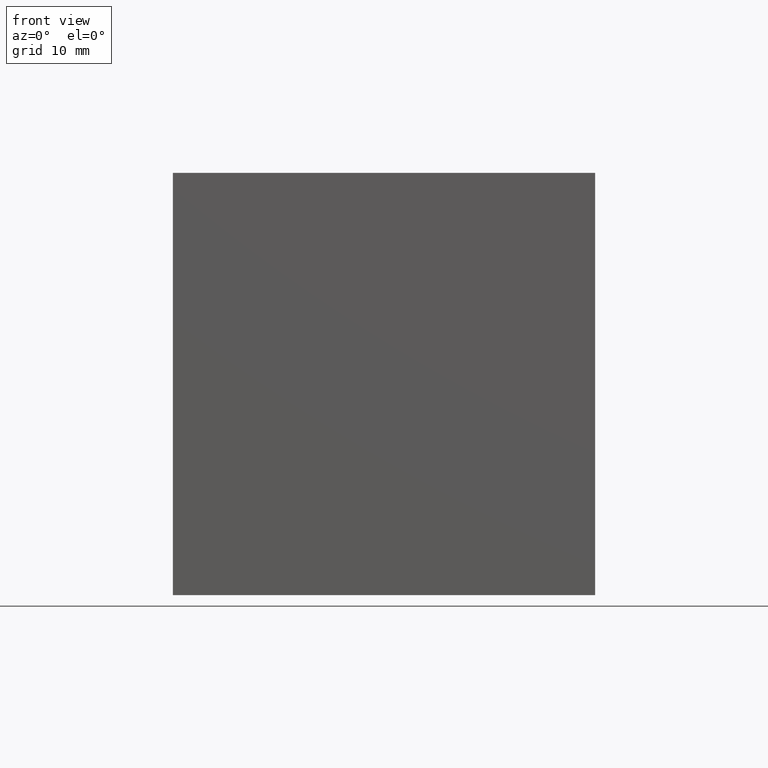
[diagram: clean part render]
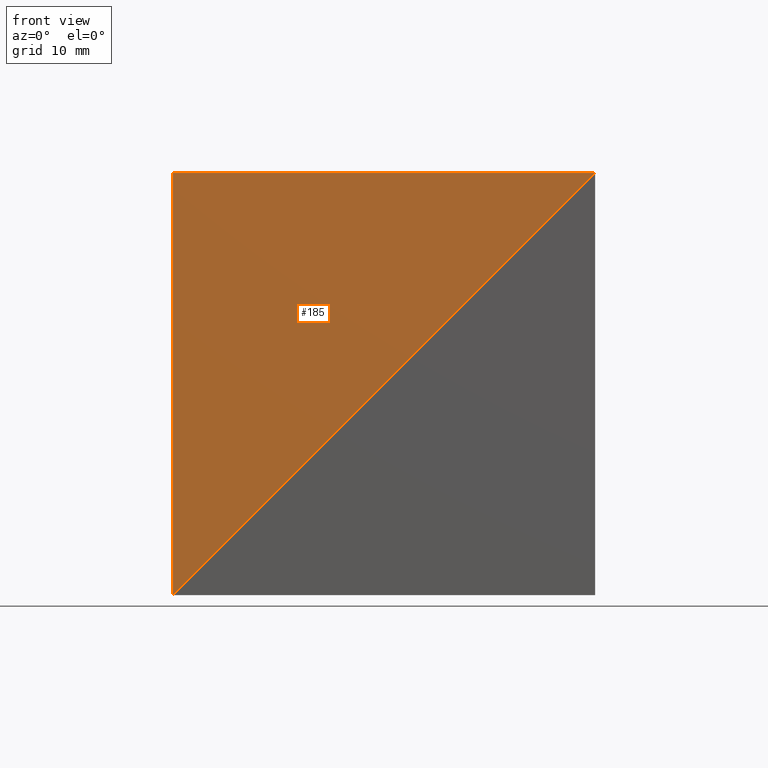
[diagram: same view with one face highlighted and labeled with its STEP entity id]
A machine part, front view. The second image highlights one B-rep face of the part: STEP entity #185.
In plain terms, the highlighted planar face has unit normal (0, 1, 0).
Its self-contained STEP definition (entity closure, byte-faithful):
#14 = VECTOR ( 'NONE', #236, 1000.000000000000000 ) ;
#15 = DIRECTION ( 'NONE',  ( 0.0000000000000000000, -0.0000000000000000000, 1.000000000000000000 ) ) ;
#16 = ORIENTED_EDGE ( 'NONE', *, *, #116, .T. ) ;
#29 = FACE_OUTER_BOUND ( 'NONE', #158, .T. ) ;
#39 = VERTEX_POINT ( 'NONE', #243 ) ;
#50 = DIRECTION ( 'NONE',  ( -1.000000000000000000, -0.0000000000000000000, -0.0000000000000000000 ) ) ;
#65 = LINE ( 'NONE', #188, #120 ) ;
#78 = CARTESIAN_POINT ( 'NONE',  ( 0.0000000000000000000, 0.0000000000000000000, 0.0000000000000000000 ) ) ;
#99 = CARTESIAN_POINT ( 'NONE',  ( -50.00000000000000000, 0.0000000000000000000, 0.0000000000000000000 ) ) ;
#116 = EDGE_CURVE ( 'NONE', #221, #297, #152, .T. ) ;
#118 = AXIS2_PLACEMENT_3D ( 'NONE', #78, #166, #15 ) ;
#120 = VECTOR ( 'NONE', #130, 1000.000000000000000 ) ;
#129 = CARTESIAN_POINT ( 'NONE',  ( 0.0000000000000000000, 0.0000000000000000000, 0.0000000000000000000 ) ) ;
#130 = DIRECTION ( 'NONE',  ( 0.7071067811865475700, 0.0000000000000000000, 0.7071067811865474600 ) ) ;
#152 = LINE ( 'NONE', #99, #165 ) ;
#158 = EDGE_LOOP ( 'NONE', ( #232, #16, #237 ) ) ;
#165 = VECTOR ( 'NONE', #50, 1000.000000000000000 ) ;
#166 = DIRECTION ( 'NONE',  ( 0.0000000000000000000, 1.000000000000000000, 0.0000000000000000000 ) ) ;
#170 = EDGE_CURVE ( 'NONE', #297, #39, #255, .T. ) ;
#177 = CARTESIAN_POINT ( 'NONE',  ( -50.00000000000000000, 0.0000000000000000000, 0.0000000000000000000 ) ) ;
#178 = EDGE_CURVE ( 'NONE', #39, #221, #65, .T. ) ;
#185 = ADVANCED_FACE ( 'NONE', ( #29 ), #277, .F. ) ;
#188 = CARTESIAN_POINT ( 'NONE',  ( 0.0000000000000000000, 0.0000000000000000000, 0.0000000000000000000 ) ) ;
#212 = CARTESIAN_POINT ( 'NONE',  ( -50.00000000000000000, -0.0000000000000000000, -49.99999999999999300 ) ) ;
#221 = VERTEX_POINT ( 'NONE', #129 ) ;
#232 = ORIENTED_EDGE ( 'NONE', *, *, #178, .T. ) ;
#236 = DIRECTION ( 'NONE',  ( -0.0000000000000000000, -0.0000000000000000000, -1.000000000000000000 ) ) ;
#237 = ORIENTED_EDGE ( 'NONE', *, *, #170, .T. ) ;
#243 = CARTESIAN_POINT ( 'NONE',  ( -50.00000000000000000, -0.0000000000000000000, -49.99999999999999300 ) ) ;
#255 = LINE ( 'NONE', #212, #14 ) ;
#277 = PLANE ( 'NONE',  #118 ) ;
#297 = VERTEX_POINT ( 'NONE', #177 ) ;